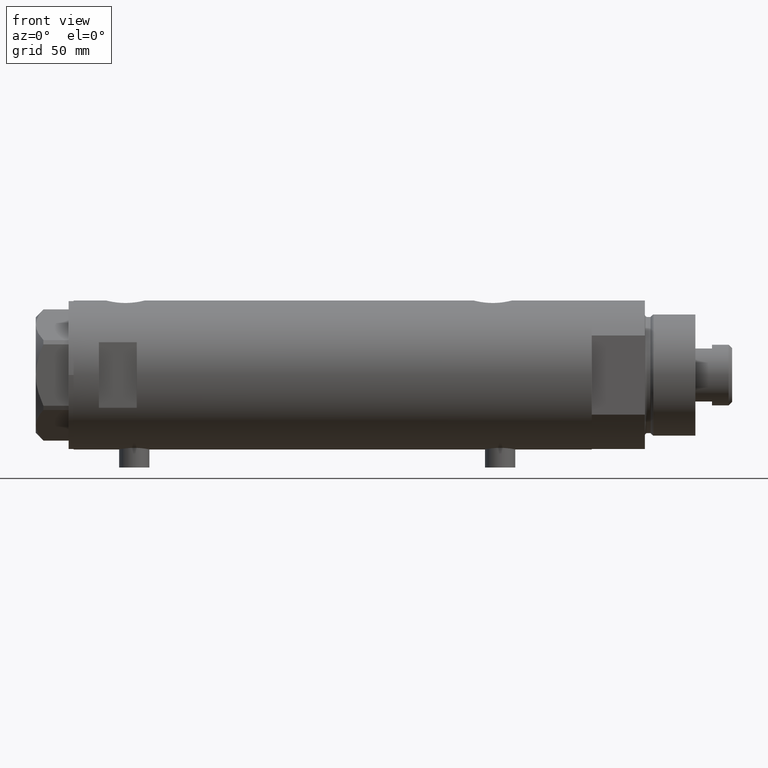
[diagram: clean part render]
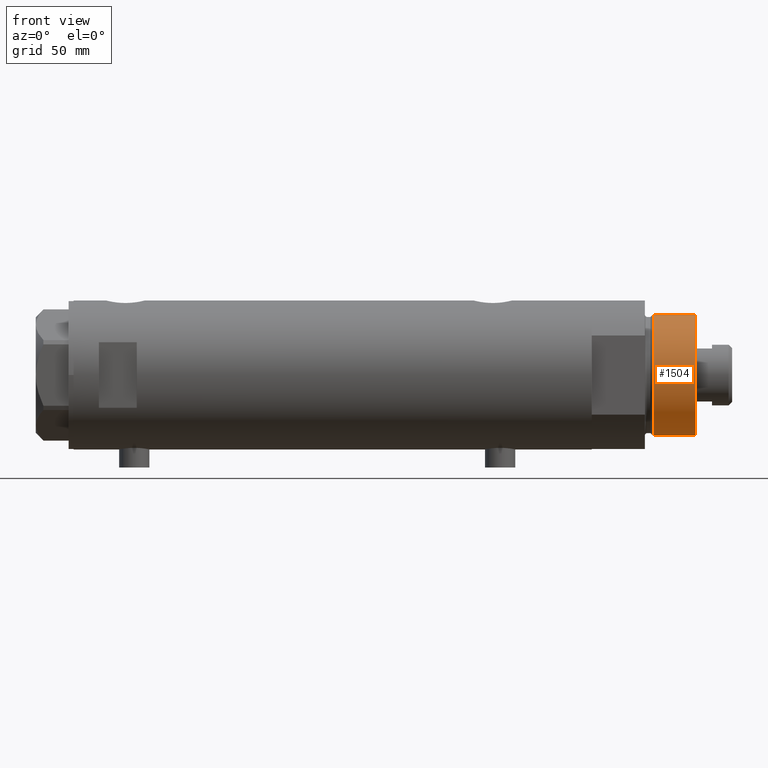
[diagram: same view with one face highlighted and labeled with its STEP entity id]
A machine part, front view. The second image highlights one B-rep face of the part: STEP entity #1504.
In plain terms, the highlighted cylindrical surface (partial cylindrical patch) has radius 24 mm, axis along (-1, -0, 0).
Its self-contained STEP definition (entity closure, byte-faithful):
#65 = CYLINDRICAL_SURFACE ( 'NONE', #2818, 24.00000000000000355 ) ;
#105 = CARTESIAN_POINT ( 'NONE',  ( 24.00000000000000355, 2.939152317953648289E-15, 41.00000000000000000 ) ) ;
#428 = ORIENTED_EDGE ( 'NONE', *, *, #3416, .F. ) ;
#453 = CARTESIAN_POINT ( 'NONE',  ( -24.00000000000000355, 0.000000000000000000, 41.00000000000000000 ) ) ;
#500 = VERTEX_POINT ( 'NONE', #2201 ) ;
#1000 = AXIS2_PLACEMENT_3D ( 'NONE', #1536, #3009, #4096 ) ;
#1417 = VERTEX_POINT ( 'NONE', #2670 ) ;
#1504 = ADVANCED_FACE ( 'NONE', ( #2269 ), #65, .T. ) ;
#1536 = CARTESIAN_POINT ( 'NONE',  ( 0.000000000000000000, 0.000000000000000000, 24.37384048104054557 ) ) ;
#1641 = CIRCLE ( 'NONE', #4180, 24.00000000000000355 ) ;
#1750 = ORIENTED_EDGE ( 'NONE', *, *, #4391, .T. ) ;
#1947 = VECTOR ( 'NONE', #2678, 1000.000000000000000 ) ;
#2196 = CARTESIAN_POINT ( 'NONE',  ( 0.000000000000000000, 0.000000000000000000, 41.00000000000000000 ) ) ;
#2201 = CARTESIAN_POINT ( 'NONE',  ( 24.00000000000000355, 2.939152317953648289E-15, 24.37384048104054557 ) ) ;
#2221 = DIRECTION ( 'NONE',  ( -1.000000000000000000, 0.000000000000000000, 0.000000000000000000 ) ) ;
#2269 = FACE_OUTER_BOUND ( 'NONE', #3377, .T. ) ;
#2286 = DIRECTION ( 'NONE',  ( -0.000000000000000000, -0.000000000000000000, -1.000000000000000000 ) ) ;
#2402 = VERTEX_POINT ( 'NONE', #2564 ) ;
#2409 = CARTESIAN_POINT ( 'NONE',  ( 24.00000000000000355, 2.939152317953648289E-15, 41.00000000000000000 ) ) ;
#2479 = CARTESIAN_POINT ( 'NONE',  ( 0.000000000000000000, 0.000000000000000000, 41.00000000000000000 ) ) ;
#2564 = CARTESIAN_POINT ( 'NONE',  ( -24.00000000000000355, 0.000000000000000000, 24.37384048104054557 ) ) ;
#2628 = CIRCLE ( 'NONE', #1000, 24.00000000000000355 ) ;
#2670 = CARTESIAN_POINT ( 'NONE',  ( -24.00000000000000355, 0.000000000000000000, 41.00000000000000000 ) ) ;
#2678 = DIRECTION ( 'NONE',  ( -0.000000000000000000, -0.000000000000000000, -1.000000000000000000 ) ) ;
#2818 = AXIS2_PLACEMENT_3D ( 'NONE', #2196, #4788, #2221 ) ;
#2863 = VECTOR ( 'NONE', #2286, 1000.000000000000000 ) ;
#2869 = ORIENTED_EDGE ( 'NONE', *, *, #4572, .F. ) ;
#3009 = DIRECTION ( 'NONE',  ( -0.000000000000000000, -0.000000000000000000, 1.000000000000000000 ) ) ;
#3205 = ORIENTED_EDGE ( 'NONE', *, *, #3398, .T. ) ;
#3353 = LINE ( 'NONE', #453, #1947 ) ;
#3377 = EDGE_LOOP ( 'NONE', ( #428, #2869, #1750, #3205 ) ) ;
#3398 = EDGE_CURVE ( 'NONE', #2402, #500, #2628, .T. ) ;
#3416 = EDGE_CURVE ( 'NONE', #4489, #500, #4487, .T. ) ;
#3912 = DIRECTION ( 'NONE',  ( 1.000000000000000000, 0.000000000000000000, 0.000000000000000000 ) ) ;
#3981 = DIRECTION ( 'NONE',  ( 0.000000000000000000, 0.000000000000000000, 1.000000000000000000 ) ) ;
#4096 = DIRECTION ( 'NONE',  ( 1.000000000000000000, 0.000000000000000000, 0.000000000000000000 ) ) ;
#4180 = AXIS2_PLACEMENT_3D ( 'NONE', #2479, #3981, #3912 ) ;
#4391 = EDGE_CURVE ( 'NONE', #1417, #2402, #3353, .T. ) ;
#4487 = LINE ( 'NONE', #105, #2863 ) ;
#4489 = VERTEX_POINT ( 'NONE', #2409 ) ;
#4572 = EDGE_CURVE ( 'NONE', #1417, #4489, #1641, .T. ) ;
#4788 = DIRECTION ( 'NONE',  ( -0.000000000000000000, -0.000000000000000000, -1.000000000000000000 ) ) ;